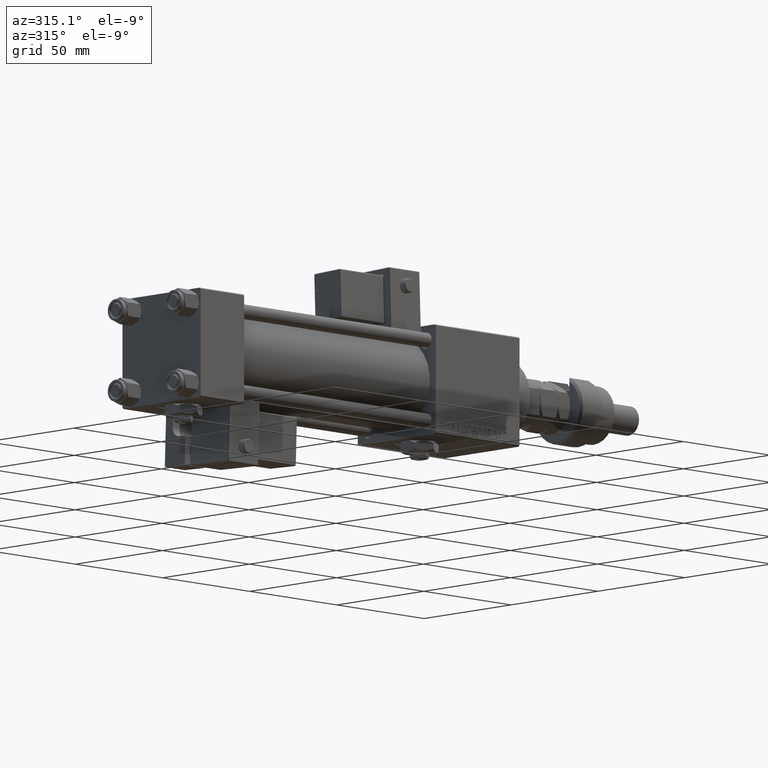
[diagram: clean part render]
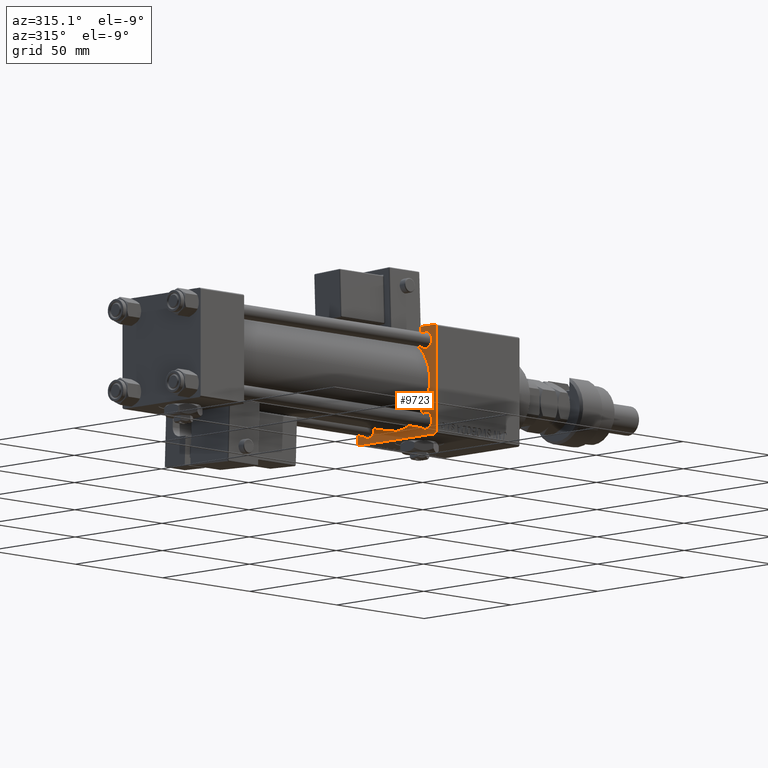
[diagram: same view with one face highlighted and labeled with its STEP entity id]
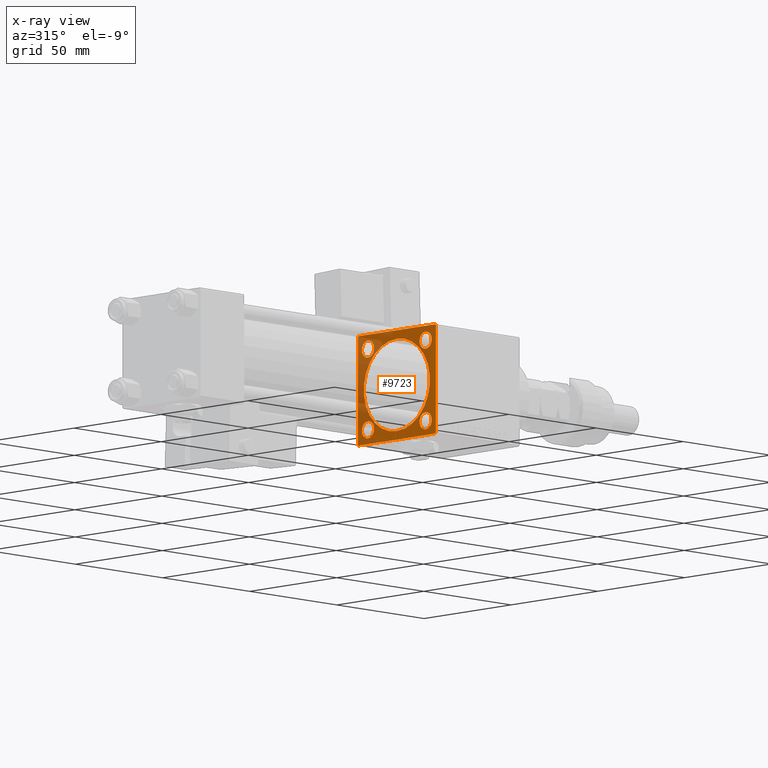
[diagram: x-ray of the same camera — body ghosted, the highlighted face saturated]
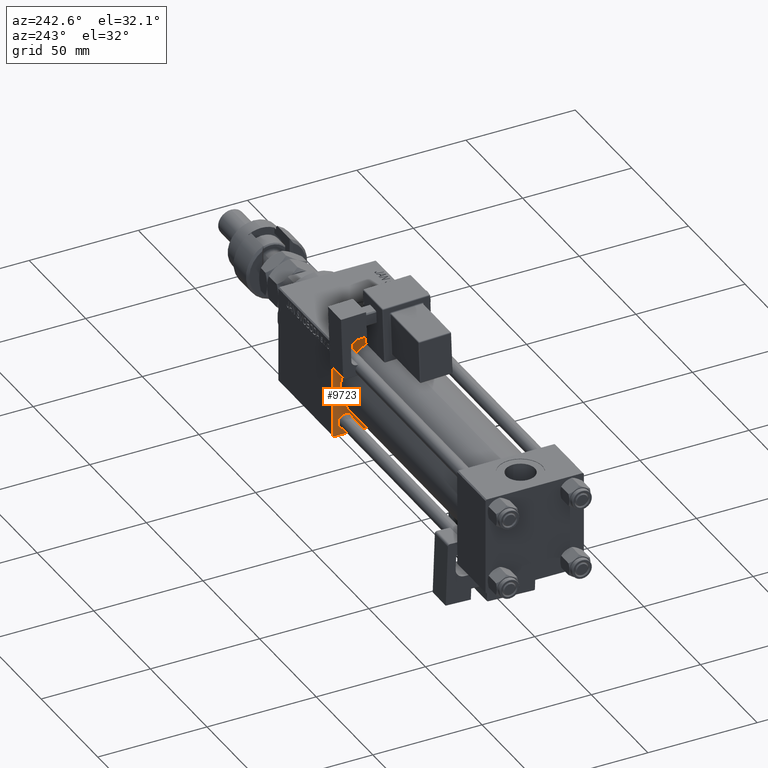
[diagram: same view with one face highlighted and labeled with its STEP entity id]
A machine part, auxiliary view. The second image highlights one B-rep face of the part: STEP entity #9723.
The next image is the same camera in x-ray: the body ghosted, the highlighted face saturated — about 32% of this face is hidden behind the body in this view.
A second angle (auxiliary view) of the same face is appended — the face is thin or edge-on in the first view.
In plain terms, the highlighted planar face has unit normal (-1, 0, 0).
Its self-contained STEP definition (entity closure, byte-faithful):
#64 = CARTESIAN_POINT ( 'NONE',  ( 135.0000000000000000, -2.602085213965210642E-15, 0.000000000000000000 ) ) ;
#115 = DIRECTION ( 'NONE',  ( 1.000000000000000000, -0.000000000000000000, 0.000000000000000000 ) ) ;
#162 = CARTESIAN_POINT ( 'NONE',  ( 135.0000000000000000, 22.50000000000000355, -21.99999999999998224 ) ) ;
#1061 = ORIENTED_EDGE ( 'NONE', *, *, #54109, .T. ) ;
#1168 = VERTEX_POINT ( 'NONE', #20008 ) ;
#1310 = FACE_BOUND ( 'NONE', #15163, .T. ) ;
#1626 = EDGE_LOOP ( 'NONE', ( #43035, #53039 ) ) ;
#1907 = VERTEX_POINT ( 'NONE', #27602 ) ;
#2165 = VERTEX_POINT ( 'NONE', #2872 ) ;
#2181 = DIRECTION ( 'NONE',  ( -0.000000000000000000, -0.7071067811865474617, -0.7071067811865474617 ) ) ;
#2454 = VERTEX_POINT ( 'NONE', #53253 ) ;
#2697 = VECTOR ( 'NONE', #27170, 1000.000000000000000 ) ;
#2765 = CARTESIAN_POINT ( 'NONE',  ( 135.0000000000000000, 22.50000000000000355, 22.50000000000000355 ) ) ;
#2872 = CARTESIAN_POINT ( 'NONE',  ( 135.0000000000000000, -2.752562955852396712E-16, -19.00000000000000000 ) ) ;
#3332 = VECTOR ( 'NONE', #26617, 1000.000000000000000 ) ;
#3907 = AXIS2_PLACEMENT_3D ( 'NONE', #38127, #29113, #55814 ) ;
#4120 = CARTESIAN_POINT ( 'NONE',  ( 135.0000000000000000, -21.99999999999995381, -22.50000000000000000 ) ) ;
#4195 = LINE ( 'NONE', #7973, #21592 ) ;
#5224 = EDGE_LOOP ( 'NONE', ( #13837, #40008 ) ) ;
#5935 = DIRECTION ( 'NONE',  ( -1.000000000000000000, 0.000000000000000000, -0.000000000000000000 ) ) ;
#6240 = CARTESIAN_POINT ( 'NONE',  ( 135.0000000000000000, -22.49999999999999645, 21.99999999999999289 ) ) ;
#6590 = CIRCLE ( 'NONE', #49291, 3.500000000000010214 ) ;
#7611 = VERTEX_POINT ( 'NONE', #13159 ) ;
#7973 = CARTESIAN_POINT ( 'NONE',  ( 135.0000000000000000, 22.25000000000000355, 22.25000000000000355 ) ) ;
#8571 = DIRECTION ( 'NONE',  ( 1.000000000000000000, -0.000000000000000000, 0.000000000000000000 ) ) ;
#8575 = CARTESIAN_POINT ( 'NONE',  ( 135.0000000000000000, -16.59999999999999076, -16.60000000000000853 ) ) ;
#9188 = EDGE_CURVE ( 'NONE', #22652, #1907, #51169, .T. ) ;
#9723 = ADVANCED_FACE ( 'NONE', ( #28308, #36760, #1310, #37883, #46316, #19596 ), #19303, .T. ) ;
#10949 = VERTEX_POINT ( 'NONE', #42570 ) ;
#11357 = DIRECTION ( 'NONE',  ( 0.000000000000000000, -0.7071067811865426878, 0.7071067811865524577 ) ) ;
#11702 = CIRCLE ( 'NONE', #37725, 3.500000000000010214 ) ;
#11970 = CARTESIAN_POINT ( 'NONE',  ( 135.0000000000000000, 16.59999999999999787, 13.09999999999999432 ) ) ;
#12627 = DIRECTION ( 'NONE',  ( 0.000000000000000000, 0.000000000000000000, 1.000000000000000000 ) ) ;
#12916 = AXIS2_PLACEMENT_3D ( 'NONE', #30253, #39269, #52601 ) ;
#12999 = DIRECTION ( 'NONE',  ( 1.000000000000000000, 0.000000000000000000, 0.000000000000000000 ) ) ;
#13050 = AXIS2_PLACEMENT_3D ( 'NONE', #47499, #8571, #17564 ) ;
#13159 = CARTESIAN_POINT ( 'NONE',  ( 135.0000000000000000, 22.50000000000000355, 22.00000000000000355 ) ) ;
#13199 = ORIENTED_EDGE ( 'NONE', *, *, #37592, .T. ) ;
#13429 = DIRECTION ( 'NONE',  ( 1.000000000000000000, 0.000000000000000000, 0.000000000000000000 ) ) ;
#13444 = VECTOR ( 'NONE', #40948, 1000.000000000000114 ) ;
#13507 = CARTESIAN_POINT ( 'NONE',  ( 135.0000000000000000, 22.00000000000000355, -22.49999999999999645 ) ) ;
#13837 = ORIENTED_EDGE ( 'NONE', *, *, #40755, .T. ) ;
#14183 = ORIENTED_EDGE ( 'NONE', *, *, #20874, .F. ) ;
#15163 = EDGE_LOOP ( 'NONE', ( #52846, #27733 ) ) ;
#16203 = DIRECTION ( 'NONE',  ( 0.000000000000000000, 0.000000000000000000, 1.000000000000000000 ) ) ;
#17037 = ORIENTED_EDGE ( 'NONE', *, *, #35701, .F. ) ;
#17564 = DIRECTION ( 'NONE',  ( 0.000000000000000000, 0.000000000000000000, 1.000000000000000000 ) ) ;
#17607 = CARTESIAN_POINT ( 'NONE',  ( 135.0000000000000000, 22.50000000000000355, 22.50000000000000355 ) ) ;
#18877 = CARTESIAN_POINT ( 'NONE',  ( 135.0000000000000000, -16.59999999999999076, -20.10000000000001563 ) ) ;
#19131 = LINE ( 'NONE', #32222, #13444 ) ;
#19216 = AXIS2_PLACEMENT_3D ( 'NONE', #24920, #42097, #16203 ) ;
#19219 = EDGE_CURVE ( 'NONE', #44320, #10949, #26988, .T. ) ;
#19303 = PLANE ( 'NONE',  #49400 ) ;
#19596 = FACE_OUTER_BOUND ( 'NONE', #41811, .T. ) ;
#19770 = CARTESIAN_POINT ( 'NONE',  ( 135.0000000000000000, 16.59999999999999787, 16.60000000000000497 ) ) ;
#20008 = CARTESIAN_POINT ( 'NONE',  ( 135.0000000000000000, -16.59999999999999076, 13.09999999999999432 ) ) ;
#20824 = AXIS2_PLACEMENT_3D ( 'NONE', #40508, #115, #31801 ) ;
#20874 = EDGE_CURVE ( 'NONE', #39744, #1907, #26282, .T. ) ;
#20879 = CARTESIAN_POINT ( 'NONE',  ( 135.0000000000000000, -16.59999999999999076, 20.10000000000001918 ) ) ;
#21592 = VECTOR ( 'NONE', #21930, 1000.000000000000114 ) ;
#21626 = DIRECTION ( 'NONE',  ( 0.000000000000000000, 0.000000000000000000, -1.000000000000000000 ) ) ;
#21930 = DIRECTION ( 'NONE',  ( 0.000000000000000000, 0.7071067811865474617, -0.7071067811865474617 ) ) ;
#22652 = VERTEX_POINT ( 'NONE', #4120 ) ;
#22849 = LINE ( 'NONE', #40878, #28391 ) ;
#22906 = DIRECTION ( 'NONE',  ( 1.000000000000000000, -0.000000000000000000, 0.000000000000000000 ) ) ;
#23384 = EDGE_CURVE ( 'NONE', #2454, #7611, #4195, .T. ) ;
#23848 = CARTESIAN_POINT ( 'NONE',  ( 135.0000000000000000, 16.59999999999999787, -13.09999999999999432 ) ) ;
#23980 = EDGE_LOOP ( 'NONE', ( #53311, #1061 ) ) ;
#24920 = CARTESIAN_POINT ( 'NONE',  ( 135.0000000000000000, 16.59999999999999787, -16.60000000000000497 ) ) ;
#26282 = LINE ( 'NONE', #35285, #55764 ) ;
#26617 = DIRECTION ( 'NONE',  ( 0.000000000000000000, 0.000000000000000000, -1.000000000000000000 ) ) ;
#26687 = VERTEX_POINT ( 'NONE', #11970 ) ;
#26988 = CIRCLE ( 'NONE', #13050, 3.500000000000010214 ) ;
#27170 = DIRECTION ( 'NONE',  ( 0.000000000000000000, -1.000000000000000000, -7.709882115452476934E-17 ) ) ;
#27478 = VERTEX_POINT ( 'NONE', #35098 ) ;
#27602 = CARTESIAN_POINT ( 'NONE',  ( 135.0000000000000000, -22.49999999999999645, -21.99999999999995026 ) ) ;
#27733 = ORIENTED_EDGE ( 'NONE', *, *, #42568, .T. ) ;
#28039 = CARTESIAN_POINT ( 'NONE',  ( 135.0000000000000000, 0.000000000000000000, 0.000000000000000000 ) ) ;
#28308 = FACE_BOUND ( 'NONE', #1626, .T. ) ;
#28391 = VECTOR ( 'NONE', #2181, 1000.000000000000114 ) ;
#28483 = DIRECTION ( 'NONE',  ( 0.000000000000000000, 0.000000000000000000, 1.000000000000000000 ) ) ;
#28954 = CIRCLE ( 'NONE', #3907, 3.500000000000013323 ) ;
#29113 = DIRECTION ( 'NONE',  ( 1.000000000000000000, -0.000000000000000000, 0.000000000000000000 ) ) ;
#29848 = CARTESIAN_POINT ( 'NONE',  ( 135.0000000000000000, 16.59999999999999787, 20.10000000000001208 ) ) ;
#30078 = DIRECTION ( 'NONE',  ( 1.000000000000000000, -0.000000000000000000, 0.000000000000000000 ) ) ;
#30253 = CARTESIAN_POINT ( 'NONE',  ( 135.0000000000000000, -16.59999999999999076, 16.60000000000000853 ) ) ;
#31324 = EDGE_CURVE ( 'NONE', #56739, #26687, #45873, .T. ) ;
#31363 = DIRECTION ( 'NONE',  ( 0.000000000000000000, 0.000000000000000000, 1.000000000000000000 ) ) ;
#31404 = ORIENTED_EDGE ( 'NONE', *, *, #9188, .T. ) ;
#31578 = EDGE_CURVE ( 'NONE', #39744, #54469, #19131, .T. ) ;
#31801 = DIRECTION ( 'NONE',  ( 0.000000000000000000, 0.000000000000000000, 1.000000000000000000 ) ) ;
#32222 = CARTESIAN_POINT ( 'NONE',  ( 135.0000000000000000, -22.24999999999999289, 22.24999999999999289 ) ) ;
#32509 = CIRCLE ( 'NONE', #49204, 3.500000000000010214 ) ;
#33111 = CARTESIAN_POINT ( 'NONE',  ( 135.0000000000000000, -21.99999999999998224, 22.49999999999999289 ) ) ;
#35098 = CARTESIAN_POINT ( 'NONE',  ( 135.0000000000000000, 16.59999999999999787, -20.10000000000001208 ) ) ;
#35285 = CARTESIAN_POINT ( 'NONE',  ( 135.0000000000000000, -22.49999999999999645, 22.49999999999999289 ) ) ;
#35701 = EDGE_CURVE ( 'NONE', #2454, #54469, #38509, .T. ) ;
#35808 = DIRECTION ( 'NONE',  ( 0.000000000000000000, 0.000000000000000000, -1.000000000000000000 ) ) ;
#36258 = EDGE_CURVE ( 'NONE', #2165, #50572, #38567, .T. ) ;
#36760 = FACE_BOUND ( 'NONE', #23980, .T. ) ;
#37242 = VERTEX_POINT ( 'NONE', #20879 ) ;
#37583 = VERTEX_POINT ( 'NONE', #162 ) ;
#37592 = EDGE_CURVE ( 'NONE', #7611, #37583, #48114, .T. ) ;
#37725 = AXIS2_PLACEMENT_3D ( 'NONE', #8575, #30078, #12627 ) ;
#37883 = FACE_BOUND ( 'NONE', #5224, .T. ) ;
#37970 = CIRCLE ( 'NONE', #12916, 3.500000000000013323 ) ;
#38127 = CARTESIAN_POINT ( 'NONE',  ( 135.0000000000000000, -16.59999999999999076, 16.60000000000000853 ) ) ;
#38399 = CARTESIAN_POINT ( 'NONE',  ( 135.0000000000000000, -22.25000000000013500, -22.24999999999982947 ) ) ;
#38492 = ORIENTED_EDGE ( 'NONE', *, *, #50655, .T. ) ;
#38509 = LINE ( 'NONE', #2765, #46890 ) ;
#38567 = CIRCLE ( 'NONE', #55233, 19.00000000000000000 ) ;
#39269 = DIRECTION ( 'NONE',  ( 1.000000000000000000, -0.000000000000000000, 0.000000000000000000 ) ) ;
#39744 = VERTEX_POINT ( 'NONE', #6240 ) ;
#39779 = EDGE_CURVE ( 'NONE', #37583, #42699, #22849, .T. ) ;
#40008 = ORIENTED_EDGE ( 'NONE', *, *, #19219, .T. ) ;
#40264 = CARTESIAN_POINT ( 'NONE',  ( 135.0000000000000000, 22.50000000000000355, -22.49999999999999645 ) ) ;
#40508 = CARTESIAN_POINT ( 'NONE',  ( 135.0000000000000000, 16.59999999999999787, 16.60000000000000497 ) ) ;
#40755 = EDGE_CURVE ( 'NONE', #10949, #44320, #11702, .T. ) ;
#40878 = CARTESIAN_POINT ( 'NONE',  ( 135.0000000000000000, 22.24999999999999645, -22.24999999999999645 ) ) ;
#40948 = DIRECTION ( 'NONE',  ( -0.000000000000000000, 0.7071067811865474617, 0.7071067811865474617 ) ) ;
#41247 = VERTEX_POINT ( 'NONE', #23848 ) ;
#41398 = LINE ( 'NONE', #40264, #2697 ) ;
#41811 = EDGE_LOOP ( 'NONE', ( #38492, #31404, #14183, #46938, #17037, #54250, #13199, #46013 ) ) ;
#41948 = EDGE_LOOP ( 'NONE', ( #44761, #56203 ) ) ;
#42097 = DIRECTION ( 'NONE',  ( 1.000000000000000000, -0.000000000000000000, 0.000000000000000000 ) ) ;
#42288 = DIRECTION ( 'NONE',  ( 0.000000000000000000, -1.000000000000000000, -2.312964634635742957E-16 ) ) ;
#42568 = EDGE_CURVE ( 'NONE', #27478, #41247, #51680, .T. ) ;
#42570 = CARTESIAN_POINT ( 'NONE',  ( 135.0000000000000000, -16.59999999999999076, -13.09999999999999787 ) ) ;
#42699 = VERTEX_POINT ( 'NONE', #13507 ) ;
#43035 = ORIENTED_EDGE ( 'NONE', *, *, #56370, .T. ) ;
#43858 = VECTOR ( 'NONE', #11357, 1000.000000000000000 ) ;
#44320 = VERTEX_POINT ( 'NONE', #18877 ) ;
#44761 = ORIENTED_EDGE ( 'NONE', *, *, #53705, .T. ) ;
#45873 = CIRCLE ( 'NONE', #20824, 3.500000000000010214 ) ;
#46013 = ORIENTED_EDGE ( 'NONE', *, *, #39779, .T. ) ;
#46060 = CARTESIAN_POINT ( 'NONE',  ( 135.0000000000000000, 16.59999999999999787, -16.60000000000000497 ) ) ;
#46316 = FACE_BOUND ( 'NONE', #41948, .T. ) ;
#46650 = EDGE_CURVE ( 'NONE', #1168, #37242, #37970, .T. ) ;
#46890 = VECTOR ( 'NONE', #42288, 1000.000000000000000 ) ;
#46938 = ORIENTED_EDGE ( 'NONE', *, *, #31578, .T. ) ;
#47499 = CARTESIAN_POINT ( 'NONE',  ( 135.0000000000000000, -16.59999999999999076, -16.60000000000000853 ) ) ;
#48114 = LINE ( 'NONE', #17607, #3332 ) ;
#48385 = AXIS2_PLACEMENT_3D ( 'NONE', #52794, #12999, #48448 ) ;
#48448 = DIRECTION ( 'NONE',  ( 0.000000000000000000, 0.000000000000000000, -1.000000000000000000 ) ) ;
#48963 = CARTESIAN_POINT ( 'NONE',  ( 135.0000000000000000, -2.602085213965210642E-15, 19.00000000000000000 ) ) ;
#49204 = AXIS2_PLACEMENT_3D ( 'NONE', #46060, #22906, #31363 ) ;
#49291 = AXIS2_PLACEMENT_3D ( 'NONE', #19770, #55188, #28483 ) ;
#49400 = AXIS2_PLACEMENT_3D ( 'NONE', #28039, #5935, #55581 ) ;
#50572 = VERTEX_POINT ( 'NONE', #48963 ) ;
#50655 = EDGE_CURVE ( 'NONE', #42699, #22652, #41398, .T. ) ;
#51169 = LINE ( 'NONE', #38399, #43858 ) ;
#51680 = CIRCLE ( 'NONE', #19216, 3.500000000000010214 ) ;
#52292 = EDGE_CURVE ( 'NONE', #41247, #27478, #32509, .T. ) ;
#52601 = DIRECTION ( 'NONE',  ( 0.000000000000000000, 0.000000000000000000, 1.000000000000000000 ) ) ;
#52794 = CARTESIAN_POINT ( 'NONE',  ( 135.0000000000000000, -2.602085213965210642E-15, 0.000000000000000000 ) ) ;
#52846 = ORIENTED_EDGE ( 'NONE', *, *, #52292, .T. ) ;
#53039 = ORIENTED_EDGE ( 'NONE', *, *, #46650, .T. ) ;
#53253 = CARTESIAN_POINT ( 'NONE',  ( 135.0000000000000000, 22.00000000000000355, 22.50000000000000355 ) ) ;
#53311 = ORIENTED_EDGE ( 'NONE', *, *, #31324, .T. ) ;
#53705 = EDGE_CURVE ( 'NONE', #50572, #2165, #54826, .T. ) ;
#54109 = EDGE_CURVE ( 'NONE', #26687, #56739, #6590, .T. ) ;
#54250 = ORIENTED_EDGE ( 'NONE', *, *, #23384, .T. ) ;
#54469 = VERTEX_POINT ( 'NONE', #33111 ) ;
#54826 = CIRCLE ( 'NONE', #48385, 19.00000000000000000 ) ;
#55188 = DIRECTION ( 'NONE',  ( 1.000000000000000000, -0.000000000000000000, 0.000000000000000000 ) ) ;
#55233 = AXIS2_PLACEMENT_3D ( 'NONE', #64, #13429, #35808 ) ;
#55581 = DIRECTION ( 'NONE',  ( -0.000000000000000000, 0.000000000000000000, 1.000000000000000000 ) ) ;
#55764 = VECTOR ( 'NONE', #21626, 1000.000000000000000 ) ;
#55814 = DIRECTION ( 'NONE',  ( 0.000000000000000000, 0.000000000000000000, 1.000000000000000000 ) ) ;
#56203 = ORIENTED_EDGE ( 'NONE', *, *, #36258, .T. ) ;
#56370 = EDGE_CURVE ( 'NONE', #37242, #1168, #28954, .T. ) ;
#56739 = VERTEX_POINT ( 'NONE', #29848 ) ;